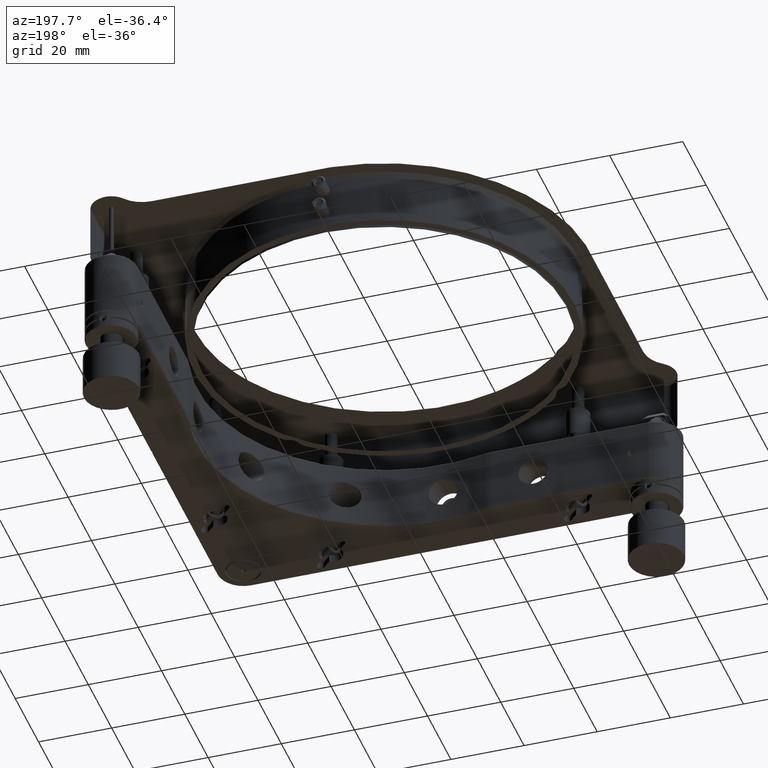
[diagram: clean part render]
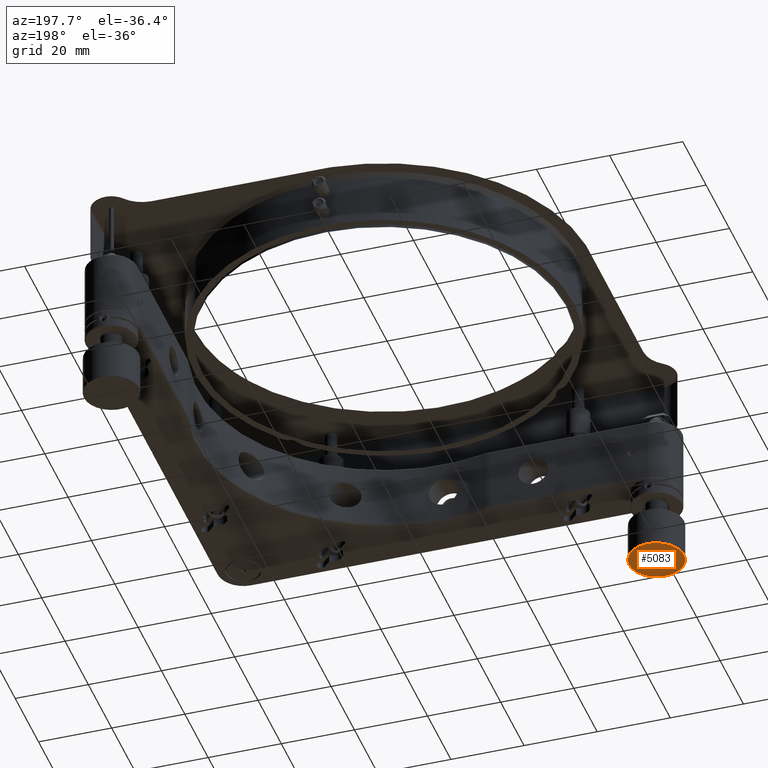
[diagram: same view with one face highlighted and labeled with its STEP entity id]
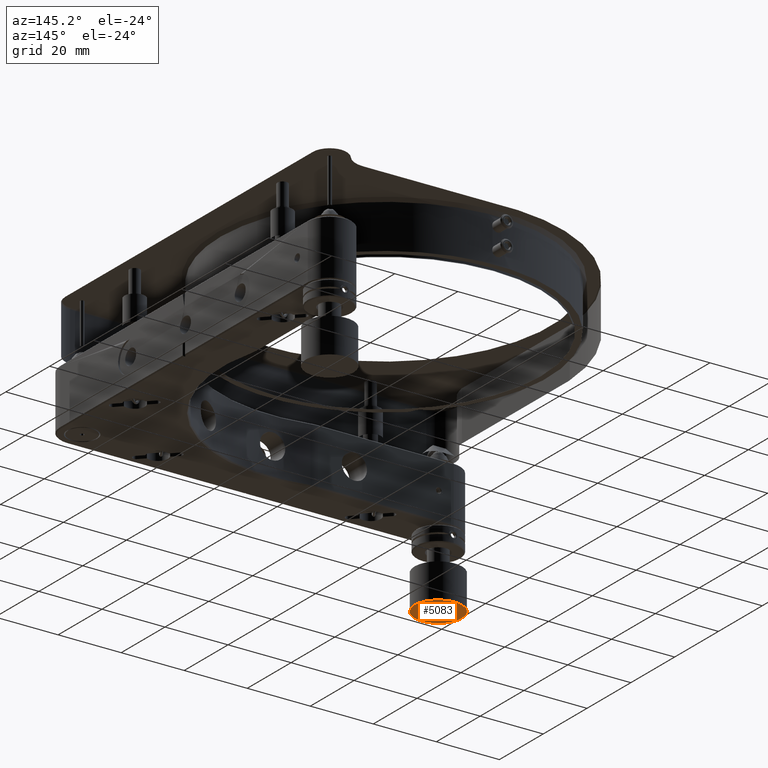
[diagram: same view with one face highlighted and labeled with its STEP entity id]
A machine part, auxiliary view. The second image highlights one B-rep face of the part: STEP entity #5083.
A second angle (auxiliary view) of the same face is appended — the face is thin or edge-on in the first view.
In plain terms, the highlighted planar face has unit normal (-0, -0, -1).
Its self-contained STEP definition (entity closure, byte-faithful):
#1267 = CARTESIAN_POINT ( 'NONE',  ( -56.49999999999999289, -56.49999999999999289, -30.78510101267772114 ) ) ;
#1569 = AXIS2_PLACEMENT_3D ( 'NONE', #17706, #17822, #2407 ) ;
#2407 = DIRECTION ( 'NONE',  ( -1.000000000000000000, 0.000000000000000000, 1.124987220396261618E-16 ) ) ;
#3972 = PLANE ( 'NONE',  #1569 ) ;
#5083 = ADVANCED_FACE ( 'NONE', ( #9325 ), #3972, .T. ) ;
#5845 = AXIS2_PLACEMENT_3D ( 'NONE', #1267, #8072, #15223 ) ;
#6919 = EDGE_CURVE ( 'NONE', #7508, #7508, #11196, .T. ) ;
#7508 = VERTEX_POINT ( 'NONE', #9630 ) ;
#8072 = DIRECTION ( 'NONE',  ( -1.124987220396261618E-16, -3.171434466609425517E-17, -1.000000000000000000 ) ) ;
#9325 = FACE_OUTER_BOUND ( 'NONE', #15640, .T. ) ;
#9630 = CARTESIAN_POINT ( 'NONE',  ( -63.99999999999987921, -56.49999999999999289, -30.78510101267772114 ) ) ;
#11196 = CIRCLE ( 'NONE', #5845, 7.499999999999881872 ) ;
#15223 = DIRECTION ( 'NONE',  ( -1.000000000000000000, 0.000000000000000000, 0.000000000000000000 ) ) ;
#15640 = EDGE_LOOP ( 'NONE', ( #19442 ) ) ;
#17706 = CARTESIAN_POINT ( 'NONE',  ( -56.49999999999999289, -56.49999999999999289, -30.78510101267772114 ) ) ;
#17822 = DIRECTION ( 'NONE',  ( -1.124987220396261618E-16, -3.171434466609425517E-17, -1.000000000000000000 ) ) ;
#19442 = ORIENTED_EDGE ( 'NONE', *, *, #6919, .T. ) ;